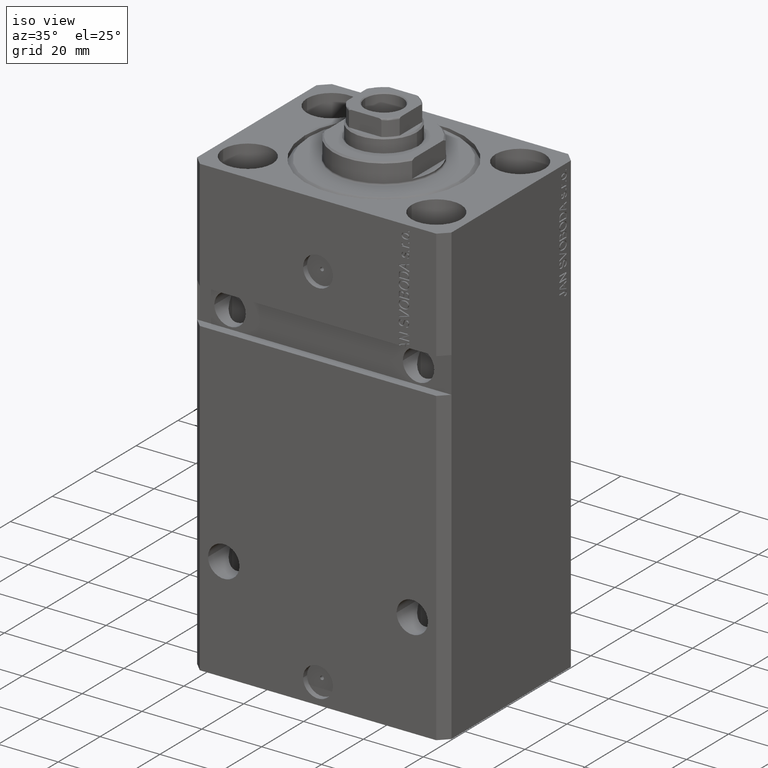
[diagram: clean part render]
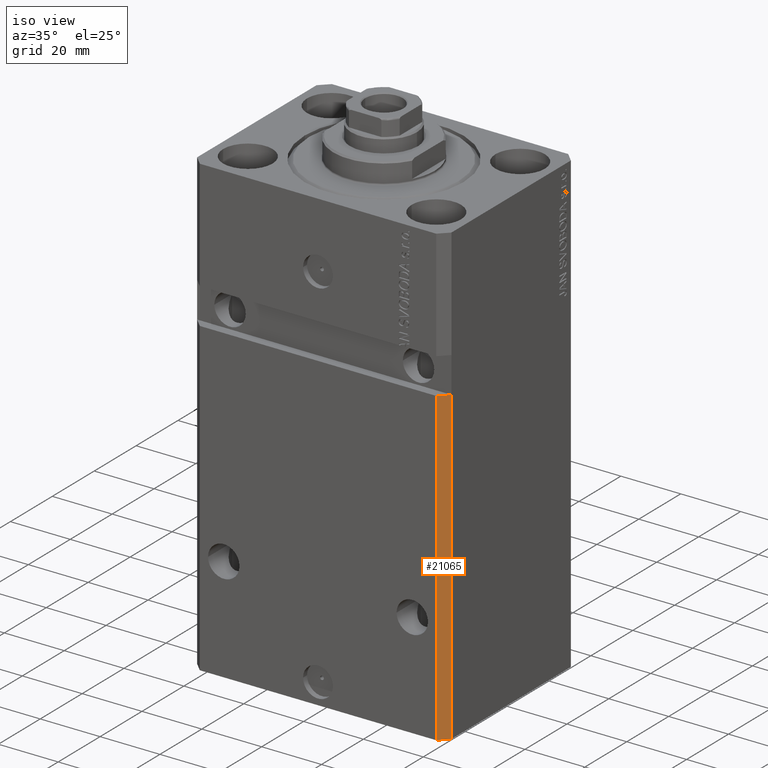
[diagram: same view with one face highlighted and labeled with its STEP entity id]
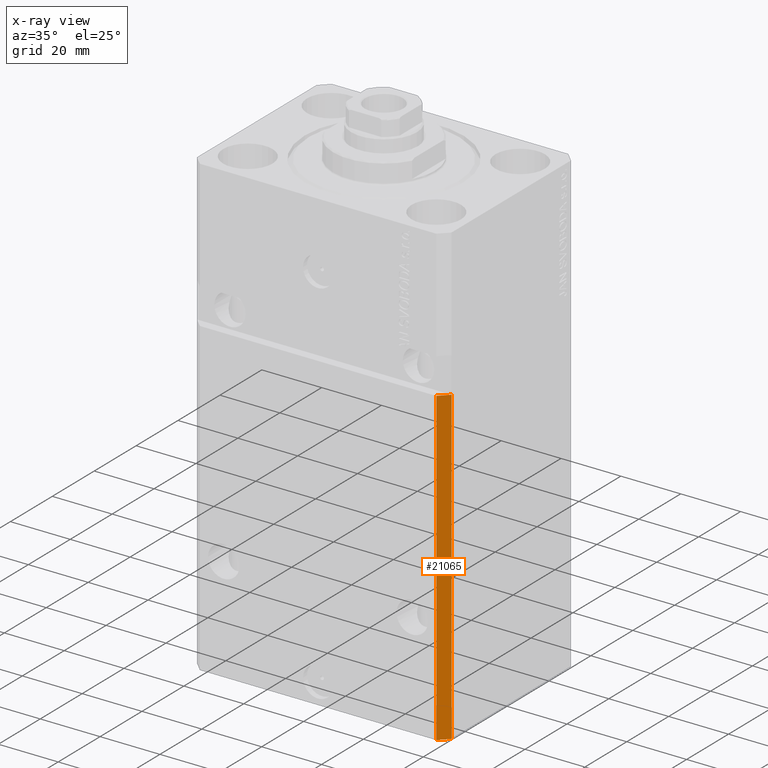
[diagram: x-ray of the same camera — body ghosted, the highlighted face saturated]
A machine part, iso view. The second image highlights one B-rep face of the part: STEP entity #21065.
The next image is the same camera in x-ray: the body ghosted, the highlighted face saturated — about 0% of this face is hidden behind the body in this view.
In plain terms, the highlighted planar face has unit normal (0.7071, -0.7071, 0).
Its self-contained STEP definition (entity closure, byte-faithful):
#560 = EDGE_CURVE ( 'NONE', #44739, #22472, #8359, .T. ) ;
#1503 = DIRECTION ( 'NONE',  ( 0.7071067811865483499, 0.7071067811865466846, 1.154479749032188485E-16 ) ) ;
#2466 = CARTESIAN_POINT ( 'NONE',  ( 39.50000000000000711, -31.50000000000000000, -153.0000000000000000 ) ) ;
#2521 = ORIENTED_EDGE ( 'NONE', *, *, #38954, .T. ) ;
#4949 = LINE ( 'NONE', #39565, #7598 ) ;
#5237 = LINE ( 'NONE', #2466, #42332 ) ;
#5378 = DIRECTION ( 'NONE',  ( 0.7071067811865466846, -0.7071067811865483499, 0.000000000000000000 ) ) ;
#5600 = DIRECTION ( 'NONE',  ( 0.7071067811865483499, 0.7071067811865466846, 0.000000000000000000 ) ) ;
#6678 = ORIENTED_EDGE ( 'NONE', *, *, #19175, .F. ) ;
#7598 = VECTOR ( 'NONE', #1503, 1000.000000000000000 ) ;
#8359 = LINE ( 'NONE', #32194, #11700 ) ;
#8600 = CARTESIAN_POINT ( 'NONE',  ( 39.50000000000000711, -31.50000000000000000, -153.0000000000000000 ) ) ;
#11700 = VECTOR ( 'NONE', #25091, 1000.000000000000000 ) ;
#15712 = FACE_OUTER_BOUND ( 'NONE', #17425, .T. ) ;
#16388 = VECTOR ( 'NONE', #27430, 1000.000000000000000 ) ;
#17425 = EDGE_LOOP ( 'NONE', ( #6678, #38796, #2521, #30269 ) ) ;
#18125 = EDGE_CURVE ( 'NONE', #26687, #34683, #42317, .T. ) ;
#19175 = EDGE_CURVE ( 'NONE', #34683, #22472, #4949, .T. ) ;
#21065 = ADVANCED_FACE ( 'NONE', ( #15712 ), #33123, .T. ) ;
#21783 = CARTESIAN_POINT ( 'NONE',  ( 39.50000000000000711, -31.50000000000000000, -153.0000000000000000 ) ) ;
#22472 = VERTEX_POINT ( 'NONE', #44700 ) ;
#25091 = DIRECTION ( 'NONE',  ( 0.000000000000000000, 0.000000000000000000, 1.000000000000000000 ) ) ;
#26545 = DIRECTION ( 'NONE',  ( 0.7071067811865483499, 0.7071067811865466846, 0.000000000000000000 ) ) ;
#26687 = VERTEX_POINT ( 'NONE', #21783 ) ;
#27430 = DIRECTION ( 'NONE',  ( 0.000000000000000000, 0.000000000000000000, 1.000000000000000000 ) ) ;
#30269 = ORIENTED_EDGE ( 'NONE', *, *, #560, .T. ) ;
#32194 = CARTESIAN_POINT ( 'NONE',  ( 42.50000000000000711, -28.50000000000000355, -153.0000000000000000 ) ) ;
#33123 = PLANE ( 'NONE',  #34766 ) ;
#34559 = CARTESIAN_POINT ( 'NONE',  ( 42.50000000000000711, -28.50000000000000355, -153.0000000000000000 ) ) ;
#34683 = VERTEX_POINT ( 'NONE', #41496 ) ;
#34766 = AXIS2_PLACEMENT_3D ( 'NONE', #8600, #5378, #5600 ) ;
#38796 = ORIENTED_EDGE ( 'NONE', *, *, #18125, .F. ) ;
#38881 = CARTESIAN_POINT ( 'NONE',  ( 39.50000000000000711, -31.50000000000000000, -153.0000000000000000 ) ) ;
#38954 = EDGE_CURVE ( 'NONE', #26687, #44739, #5237, .T. ) ;
#39565 = CARTESIAN_POINT ( 'NONE',  ( 39.50000000000000000, -31.50000000000000711, -48.99999999999997158 ) ) ;
#41496 = CARTESIAN_POINT ( 'NONE',  ( 39.50000000000000000, -31.49999999999999289, -48.99999999999997868 ) ) ;
#42317 = LINE ( 'NONE', #38881, #16388 ) ;
#42332 = VECTOR ( 'NONE', #26545, 1000.000000000000000 ) ;
#44700 = CARTESIAN_POINT ( 'NONE',  ( 42.50000000000001421, -28.49999999999999289, -48.99999999999997868 ) ) ;
#44739 = VERTEX_POINT ( 'NONE', #34559 ) ;